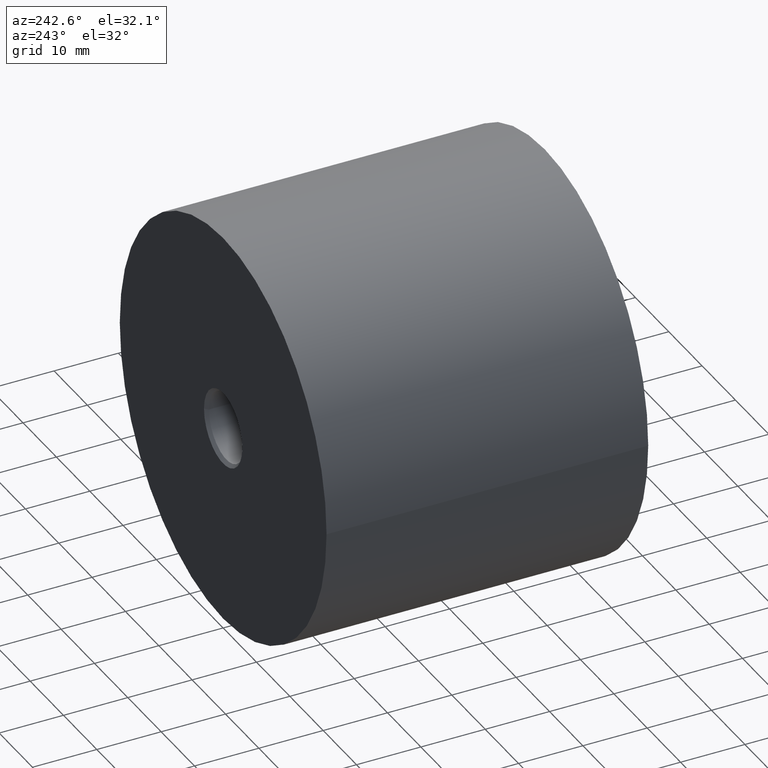
[diagram: clean part render]
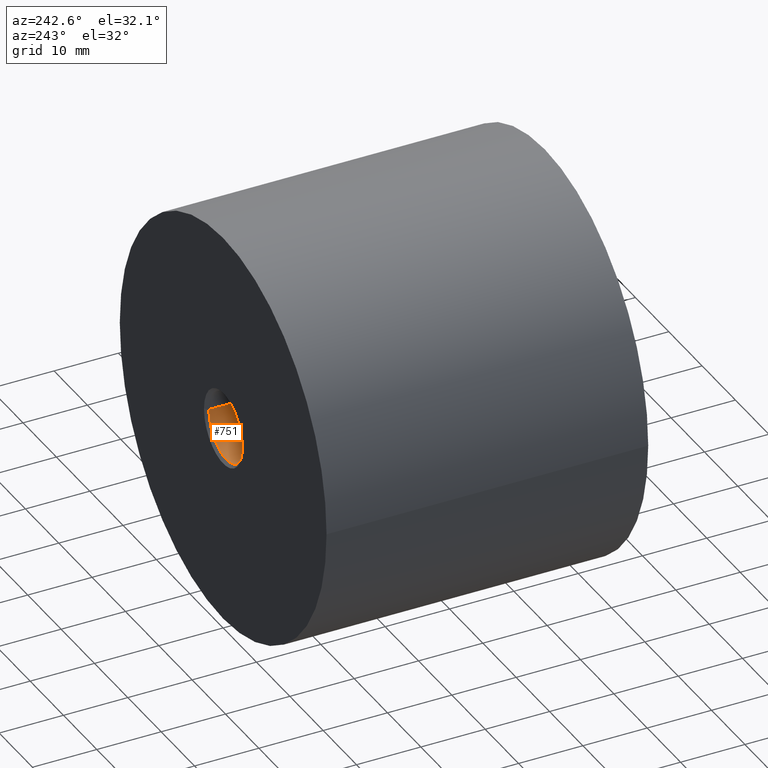
[diagram: same view with one face highlighted and labeled with its STEP entity id]
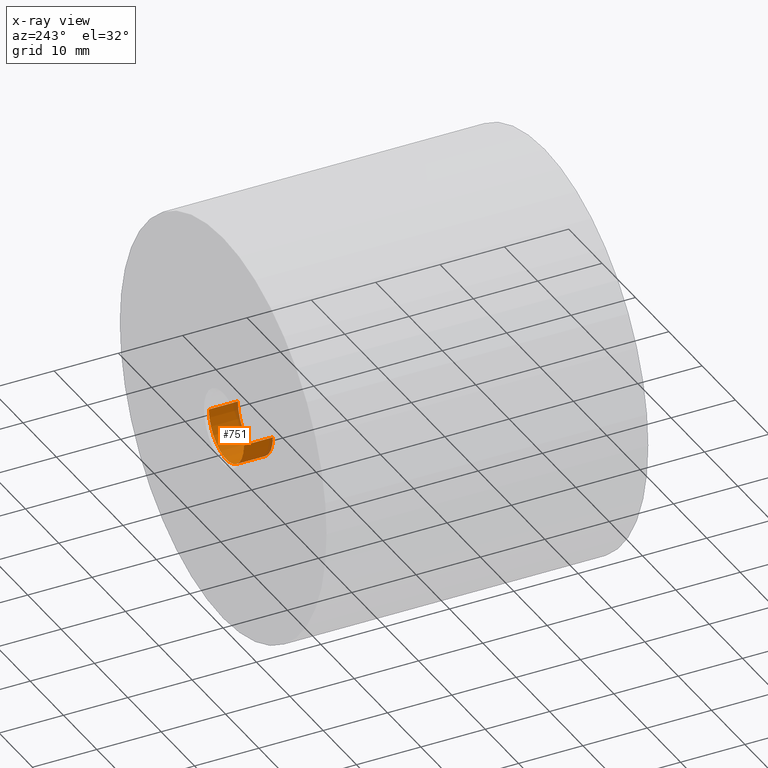
[diagram: x-ray of the same camera — body ghosted, the highlighted face saturated]
A machine part, auxiliary view. The second image highlights one B-rep face of the part: STEP entity #751.
The next image is the same camera in x-ray: the body ghosted, the highlighted face saturated — about 11% of this face is hidden behind the body in this view.
In plain terms, the highlighted cylindrical surface (partial cylindrical patch) has radius 5.25 mm, axis along (-0, 1, -0).
Its self-contained STEP definition (entity closure, byte-faithful):
#168 = VERTEX_POINT ( 'NONE', #9006 ) ;
#751 = ADVANCED_FACE ( 'NONE', ( #7919 ), #3006, .F. ) ;
#1017 = AXIS2_PLACEMENT_3D ( 'NONE', #8797, #10096, #1846 ) ;
#1369 = CARTESIAN_POINT ( 'NONE',  ( 5.249999999999995559, 50.00000000000000000, 6.429395695523608097E-16 ) ) ;
#1413 = CARTESIAN_POINT ( 'NONE',  ( 5.249999999999992006, 49.50000000000000000, 6.735557395310440051E-16 ) ) ;
#1570 = ORIENTED_EDGE ( 'NONE', *, *, #12231, .T. ) ;
#1846 = DIRECTION ( 'NONE',  ( -1.000000000000000000, 0.000000000000000000, 0.000000000000000000 ) ) ;
#2015 = VERTEX_POINT ( 'NONE', #1413 ) ;
#2637 = ORIENTED_EDGE ( 'NONE', *, *, #11882, .F. ) ;
#2971 = EDGE_CURVE ( 'NONE', #10888, #2015, #7878, .T. ) ;
#3006 = CYLINDRICAL_SURFACE ( 'NONE', #8863, 5.250000000000002665 ) ;
#3413 = CARTESIAN_POINT ( 'NONE',  ( -5.250000000000005329, 49.50000000000000000, 0.000000000000000000 ) ) ;
#3493 = DIRECTION ( 'NONE',  ( -1.000000000000000000, 0.000000000000000000, 0.000000000000000000 ) ) ;
#3649 = AXIS2_PLACEMENT_3D ( 'NONE', #10919, #6229, #8432 ) ;
#4582 = EDGE_LOOP ( 'NONE', ( #12498, #11039, #1570, #2637 ) ) ;
#5821 = DIRECTION ( 'NONE',  ( -1.387778780781445676E-16, 1.000000000000000000, -0.000000000000000000 ) ) ;
#6229 = DIRECTION ( 'NONE',  ( -1.387778780781445676E-16, 1.000000000000000000, -0.000000000000000000 ) ) ;
#7878 = LINE ( 'NONE', #1369, #12058 ) ;
#7919 = FACE_OUTER_BOUND ( 'NONE', #4582, .T. ) ;
#8432 = DIRECTION ( 'NONE',  ( -1.000000000000000000, 0.000000000000000000, 0.000000000000000000 ) ) ;
#8797 = CARTESIAN_POINT ( 'NONE',  ( -6.245004513516506329E-15, 45.00000000000001421, 0.000000000000000000 ) ) ;
#8863 = AXIS2_PLACEMENT_3D ( 'NONE', #12841, #10438, #3493 ) ;
#9006 = CARTESIAN_POINT ( 'NONE',  ( -5.250000000000008882, 45.00000000000001421, 0.000000000000000000 ) ) ;
#9464 = DIRECTION ( 'NONE',  ( -1.387778780781445676E-16, 1.000000000000000000, -0.000000000000000000 ) ) ;
#10030 = VERTEX_POINT ( 'NONE', #3413 ) ;
#10096 = DIRECTION ( 'NONE',  ( -1.387778780781445676E-16, 1.000000000000000000, -0.000000000000000000 ) ) ;
#10438 = DIRECTION ( 'NONE',  ( -1.387778780781445676E-16, 1.000000000000000000, -0.000000000000000000 ) ) ;
#10566 = CARTESIAN_POINT ( 'NONE',  ( -5.250000000000009770, 50.00000000000000000, 0.000000000000000000 ) ) ;
#10645 = VECTOR ( 'NONE', #9464, 1000.000000000000000 ) ;
#10848 = LINE ( 'NONE', #10566, #10645 ) ;
#10888 = VERTEX_POINT ( 'NONE', #14402 ) ;
#10919 = CARTESIAN_POINT ( 'NONE',  ( -6.869504964868156094E-15, 49.50000000000000000, 0.000000000000000000 ) ) ;
#11039 = ORIENTED_EDGE ( 'NONE', *, *, #2971, .T. ) ;
#11882 = EDGE_CURVE ( 'NONE', #168, #10030, #10848, .T. ) ;
#12058 = VECTOR ( 'NONE', #5821, 1000.000000000000000 ) ;
#12231 = EDGE_CURVE ( 'NONE', #2015, #10030, #13385, .T. ) ;
#12467 = CIRCLE ( 'NONE', #1017, 5.250000000000002665 ) ;
#12498 = ORIENTED_EDGE ( 'NONE', *, *, #13185, .F. ) ;
#12841 = CARTESIAN_POINT ( 'NONE',  ( -6.938893903907228378E-15, 50.00000000000000000, 0.000000000000000000 ) ) ;
#13185 = EDGE_CURVE ( 'NONE', #10888, #168, #12467, .T. ) ;
#13385 = CIRCLE ( 'NONE', #3649, 5.249999999999998224 ) ;
#14402 = CARTESIAN_POINT ( 'NONE',  ( 5.249999999999996447, 45.00000000000001421, 6.429395695523609083E-16 ) ) ;